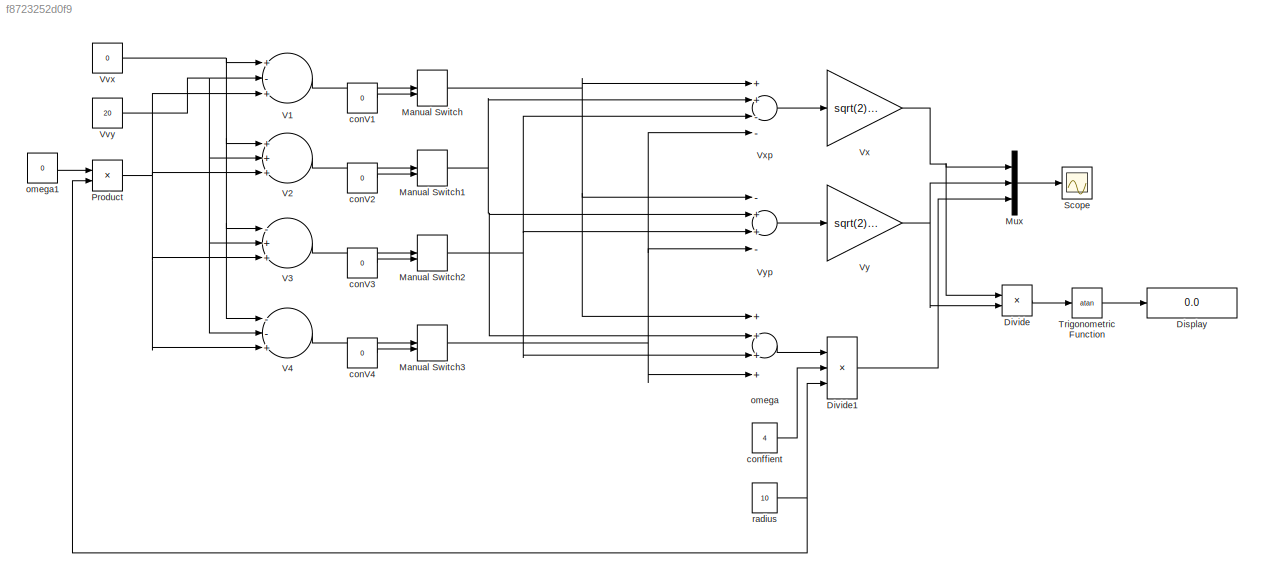
MODEL slx_f8723252d0f9
KIND model
CONFIG AbsTol = auto
CONFIG FixedStep = auto
CONFIG MaxStep = auto
CONFIG MinStep = auto
CONFIG RelTol = 1e-3
CONFIG SampleTimeConstraint = Unconstrained
CONFIG Solver = VariableStepAuto
CONFIG SolverMode = Auto
CONFIG SolverName = VariableStepAuto
CONFIG StartTime = 0.0
CONFIG StopTime = 10.0
BLOCK [Display] Display
  Decimation = 1
  Ports = [1]
BLOCK [Product] Divide
  InputSameDT = off
  Inputs = */
  OutDataTypeStr = Inherit: Inherit via internal rule
  Ports = [2, 1]
  RndMeth = Floor
  SaturateOnIntegerOverflow = off
BLOCK [Product] Divide1
  InputSameDT = off
  Inputs = *//
  OutDataTypeStr = Inherit: Inherit via internal rule
  Ports = [3, 1]
  RndMeth = Floor
  SaturateOnIntegerOverflow = off
BLOCK [ManualSwitch] Manual Switch
  CurrentSetting = 0
BLOCK [ManualSwitch] Manual Switch1
  CurrentSetting = 0
BLOCK [ManualSwitch] Manual Switch2
  CurrentSetting = 0
BLOCK [ManualSwitch] Manual Switch3
  CurrentSetting = 0
BLOCK [Mux] Mux
  DisplayOption = bar
  Inputs = 3
  Ports = [3, 1]
BLOCK [Product] Product
  InputSameDT = off
  OutDataTypeStr = Inherit: Inherit via internal rule
  Ports = [2, 1]
  RndMeth = Floor
  SaturateOnIntegerOverflow = off
BLOCK [Scope] Scope
  Ports = [1]
  ScopeSpecificationString = Simulink.scopes.TimeScopeBlockCfg('CurrentConfiguration', extmgr.ConfigurationSet(extmgr.Configuration('Core','General UI',true),extmgr.Configuration('Core','Source UI',true),extmgr.Configuration('Sources','WiredSimulink',true),extmgr.Configuration('Visuals','Time Domain',true,'SerializedDisplays',{struct('MinYLimReal','-1.00000','MaxYLimReal','1.00000','YLabelReal','','MinYLimMag','0.00000','MaxY...<+1411ch>
BLOCK [Trigonometry] Trigonometric Function
  Operator = atan
  OutputSignalType = real
  Ports = [1, 1]
BLOCK [Sum] V1 
  InputSameDT = off
  Inputs = +-+
  OutDataTypeStr = Inherit: Inherit via internal rule
  Ports = [3, 1]
  SaturateOnIntegerOverflow = off
BLOCK [Sum] V2
  InputSameDT = off
  Inputs = +++
  OutDataTypeStr = Inherit: Inherit via internal rule
  Ports = [3, 1]
  SaturateOnIntegerOverflow = off
BLOCK [Sum] V3
  InputSameDT = off
  Inputs = -++
  OutDataTypeStr = Inherit: Inherit via internal rule
  Ports = [3, 1]
  SaturateOnIntegerOverflow = off
BLOCK [Sum] V4
  InputSameDT = off
  Inputs = --+
  OutDataTypeStr = Inherit: Inherit via internal rule
  Ports = [3, 1]
  SaturateOnIntegerOverflow = off
BLOCK [Constant] Vvx 
  Value = 0
BLOCK [Constant] Vvy 
  Value = 20
BLOCK [Gain] Vx 
  Gain = sqrt(2)/2
  OutDataTypeStr = Inherit: Inherit via internal rule
  ParamDataTypeStr = Inherit: Inherit via internal rule
  SaturateOnIntegerOverflow = off
BLOCK [Sum] Vxp
  InputSameDT = off
  Inputs = ++--
  OutDataTypeStr = Inherit: Inherit via internal rule
  Ports = [4, 1]
  SaturateOnIntegerOverflow = off
BLOCK [Gain] Vy 
  Gain = sqrt(2)/2
  OutDataTypeStr = Inherit: Inherit via internal rule
  ParamDataTypeStr = Inherit: Inherit via internal rule
  SaturateOnIntegerOverflow = off
BLOCK [Sum] Vyp 
  InputSameDT = off
  Inputs = -++-
  OutDataTypeStr = Inherit: Inherit via internal rule
  Ports = [4, 1]
  SaturateOnIntegerOverflow = off
BLOCK [Constant] conV1
  Value = 0
BLOCK [Constant] conV2
  Value = 0
BLOCK [Constant] conV3
  Value = 0
BLOCK [Constant] conV4 
  Value = 0
BLOCK [Constant] conffient 
  Value = 4
BLOCK [Sum] omega 
  InputSameDT = off
  Inputs = ++++
  OutDataTypeStr = Inherit: Inherit via internal rule
  Ports = [4, 1]
  SaturateOnIntegerOverflow = off
BLOCK [Constant] omega1 
  Value = 0
BLOCK [Constant] radius 
  Value = 10
LINE Divide1:1 -> Mux:3
LINE Divide:1 -> Trigonometric Function:1
NET Manual Switch1:1 -> Vxp:2, Vyp :2, omega :2
NET Manual Switch2:1 -> Vxp:3, Vyp :3, omega :3
NET Manual Switch3:1 -> Vxp:4, Vyp :4, omega :4
NET Manual Switch:1 -> Vxp:1, Vyp :1, omega :1
LINE Mux:1 -> Scope:1
NET Product:1 -> V1 :3, V2:3, V3:3, V4:3
LINE Trigonometric Function:1 -> Display:1
LINE V1 :1 -> Manual Switch:1
LINE V2:1 -> Manual Switch1:1
LINE V3:1 -> Manual Switch2:1
LINE V4:1 -> Manual Switch3:1
NET Vvx :1 -> V1 :1, V2:1, V3:1, V4:1
NET Vvy :1 -> V1 :2, V2:2, V3:2, V4:2
NET Vx :1 -> Divide:1, Mux:1
LINE Vxp:1 -> Vx :1
NET Vy :1 -> Divide:2, Mux:2
LINE Vyp :1 -> Vy :1
LINE conV1:1 -> Manual Switch:2
LINE conV2:1 -> Manual Switch1:2
LINE conV3:1 -> Manual Switch2:2
LINE conV4 :1 -> Manual Switch3:2
LINE conffient :1 -> Divide1:2
LINE omega :1 -> Divide1:1
LINE omega1 :1 -> Product:1
NET radius :1 -> Divide1:3, Product:2
note: NET lines group one-source signal fan-out (src -> all destinations, sorted); 1:1 wires keep LINE
